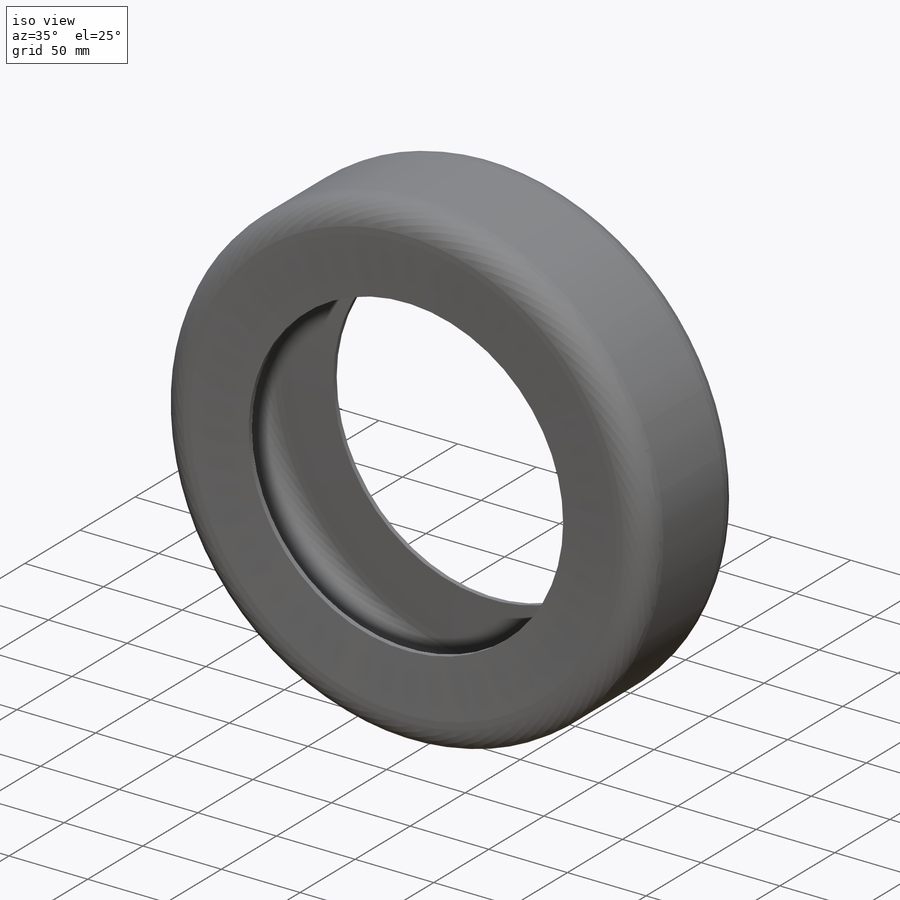
[diagram: iso view]
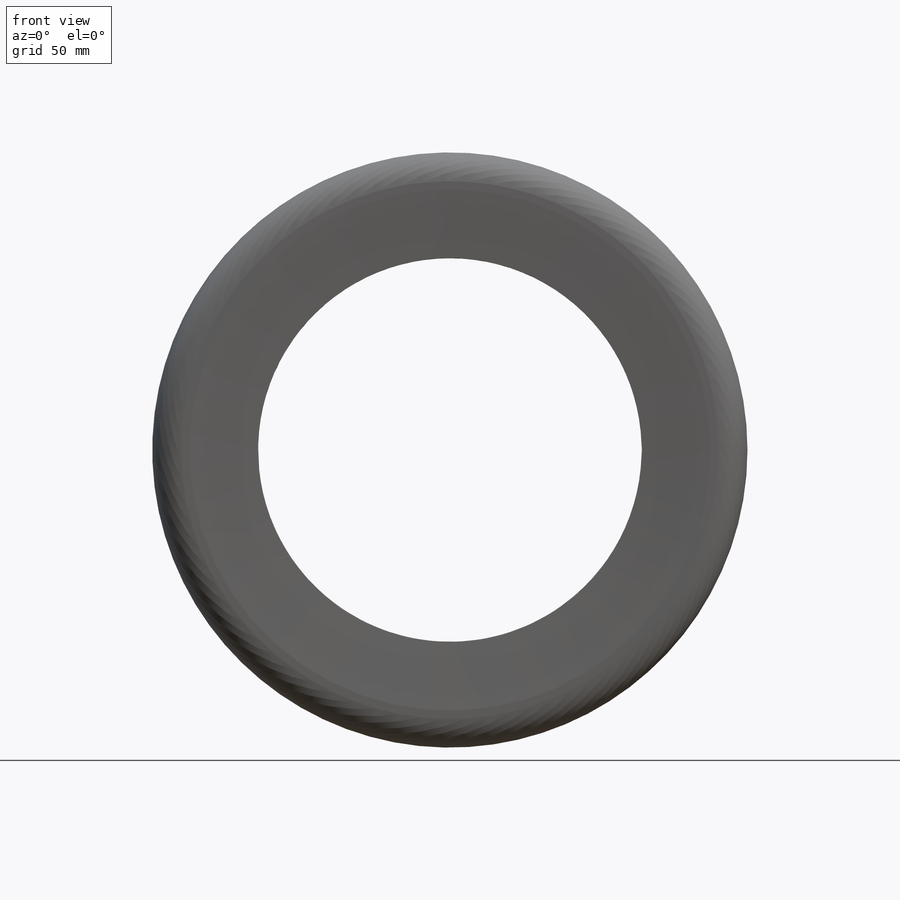
[diagram: front view]
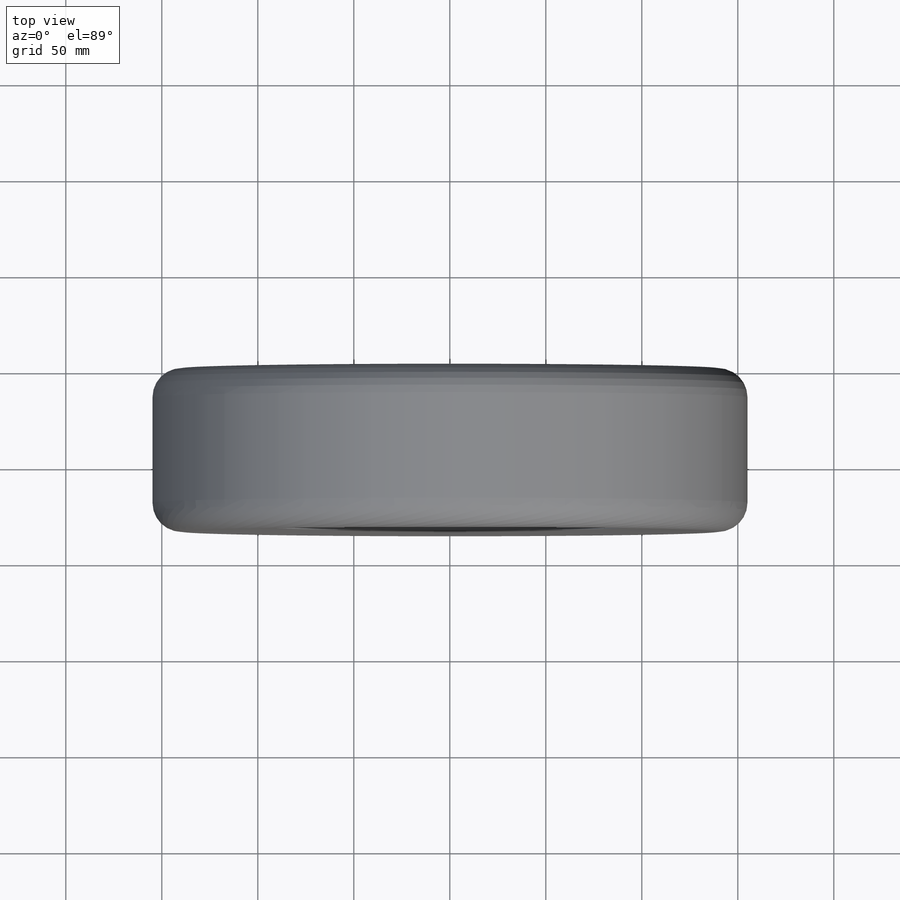
[diagram: top view]
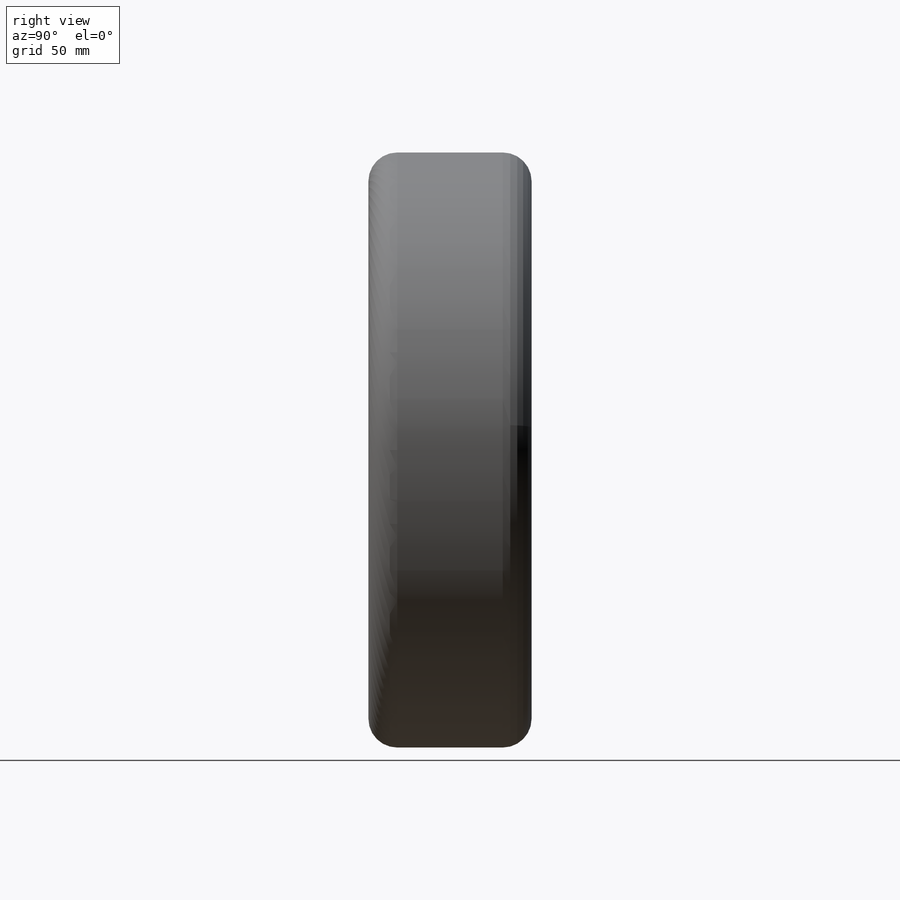
[diagram: right view]
SOLIDWORKS PART (.sldprt)
format: sldprt  version: not decoded by parser v0  size: 238,592 bytes
history: native  units: mm
features: plane x3, sketch x2, chamfer x2, fillet x2, material x1, extrude x1, cut_extrude x1, shell x1 (+13 scaffold rows collapsed)
feature tree (26):
  scaffold x13  (default folders/planes/origin — collapsed)
  material  "聚亚安酯(11671)"
  plane  "前视基准面"
  plane  "上视基准面"
  plane  "右视基准面"
  sketch  "草图1"  dims[D1=350.0mm D2=200.0mm]
  extrude  "凸台-拉伸1"  Depth=85mm
  chamfer  "倒角1"  Distance=2.5mm Angle=86deg
  chamfer  "倒角2"  Distance=2.5mm Angle=86deg
  fillet  "圆角1"  Radius=20mm
  sketch  "草图4"
  cut_extrude  "切除-拉伸3"  Depth=156mm
  fillet  "圆角2"  Radius=15mm
  shell  "抽壳2"  Thickness=3mm
decode coverage: 8 of 9 modeling features carry decoded parameters
note: suppression state not decoded; provenance and decode notes live in map.json
